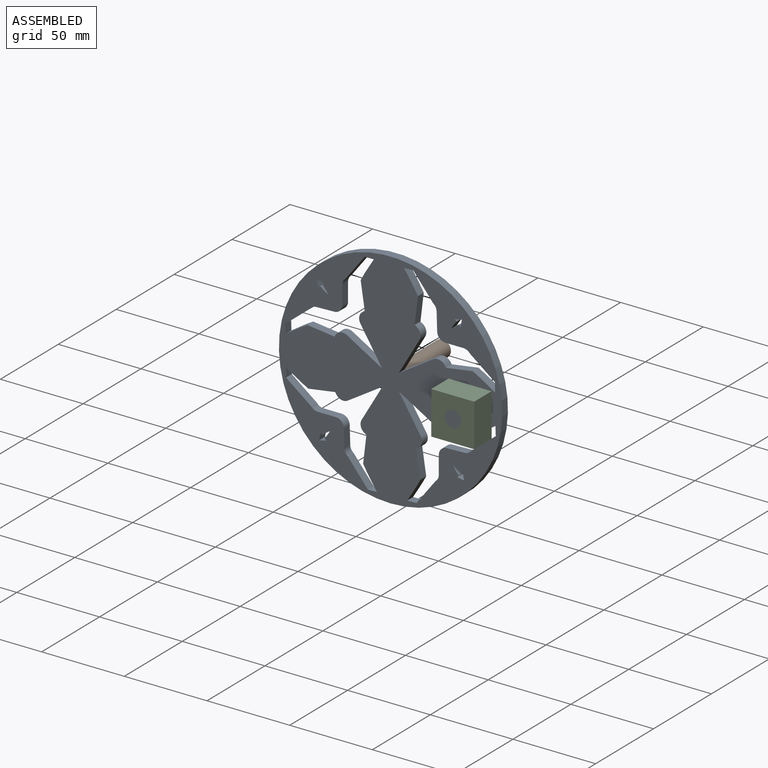
[diagram: assembled view]
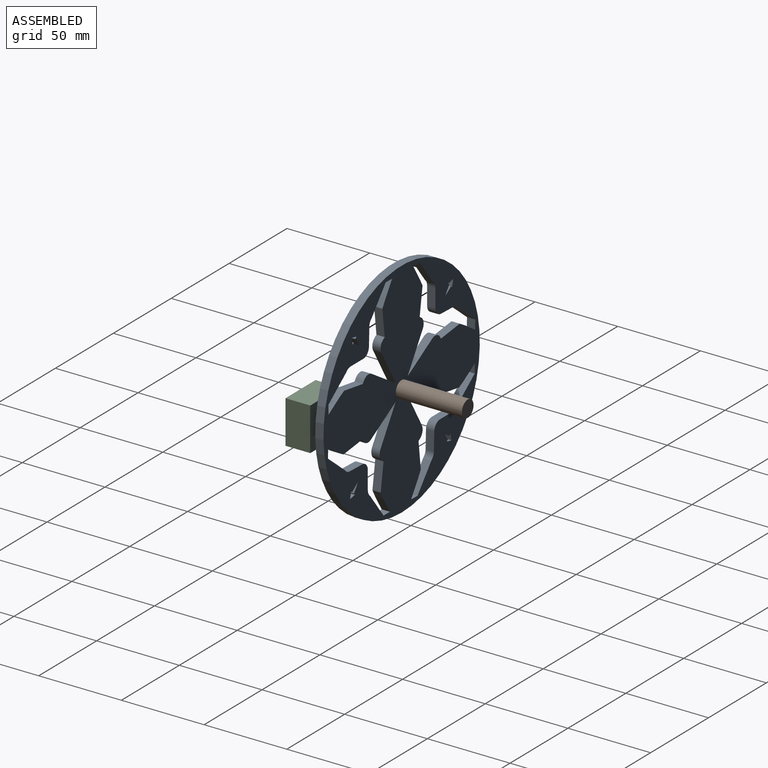
[diagram: assembled view, second angle]
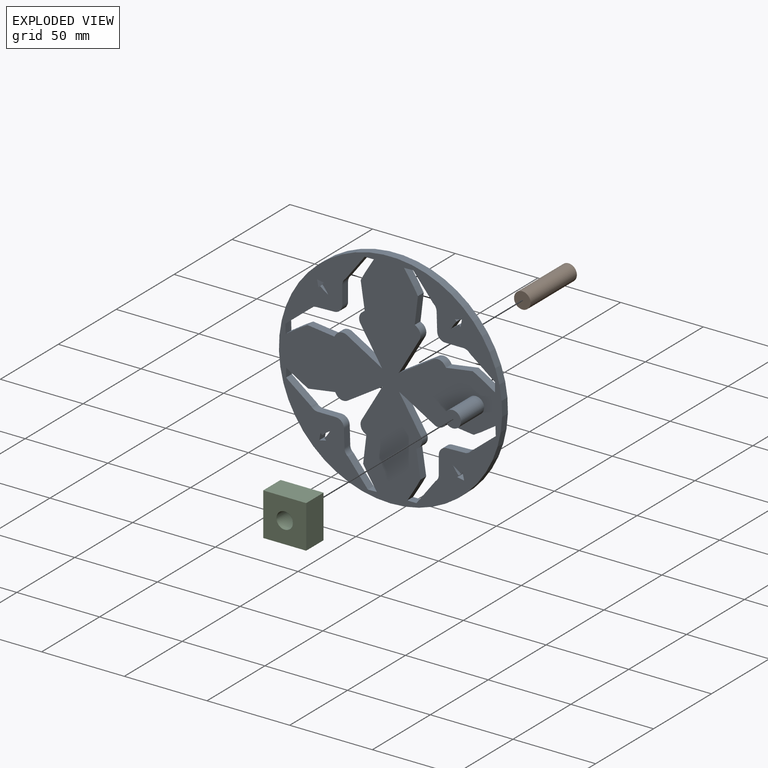
[diagram: exploded view]
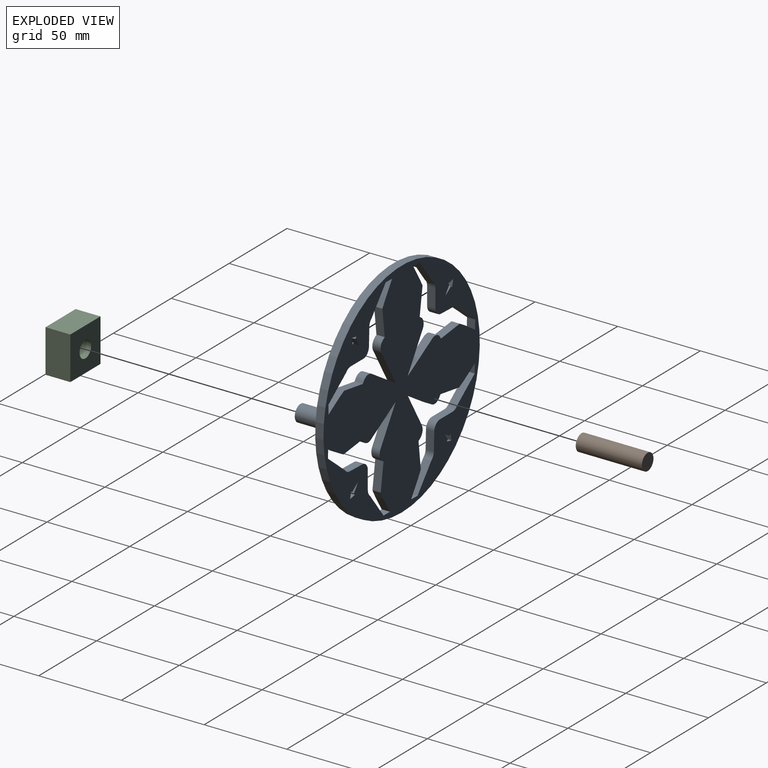
[diagram: exploded view, second angle]
ASSEMBLY  parts=3 mates=2
PART A: 125 faces, bbox 135x25x135 mm
  f0: plane 135x135mm, normal (0,-1,0), area 10554.5mm2, adj f2,f3,f5,f6,f7,f8,f9,f10
  f1: plane 135x135mm, normal (0,1,0), area 10633.1mm2, adj f2,f5,f6,f7,f8,f9,f10,f11
  f2: cylinder r=67.5mm len=135mm, axis (0,1,0), area 2120.6mm2, adj f0,f1
  f3: cylinder r=5mm len=20mm, axis (0,1,0), area 628.3mm2, adj f0,f4
  f4: plane 10x10mm, normal (0,-1,0), area 78.5mm2, adj f3
  f5: plane 20.94x13.12mm, normal (0.53,0,-0.85), area 123.6mm2, adj f0,f1,f6,f65
  f6: plane 21.32x12.49mm, normal (-0.86,0,0.51), area 123.6mm2, adj f0,f1,f5,f66
  f7: plane 20.94x13.12mm, normal (-0.85,0,-0.53), area 123.6mm2, adj f0,f1,f8,f45
  f8: plane 21.32x12.49mm, normal (0.51,0,0.86), area 123.6mm2, adj f0,f1,f7,f46
  f9: plane 5.51x5mm, normal (-1,0,0), area 27.5mm2, adj f0,f1,f10,f30
  f10: plane 15.2x11.63mm, normal (-0.61,0,-0.79), area 95.7mm2, adj f0,f1,f9,f11
  f11: cylinder r=5mm len=5mm, axis (0,-1,0), area 22.8mm2, adj f0,f1,f10,f12
  f12: plane 10.87x5mm, normal (0,0,-1), area 54.4mm2, adj f0,f1,f11,f13
  f13: cylinder r=5mm len=5mm, axis (0,-1,0), area 19.1mm2, adj f0,f1,f12,f14
  f14: cylinder r=5mm len=5mm, axis (0,-1,0), area 19.1mm2, adj f0,f1,f13,f15
  f15: plane 10.87x5mm, normal (-1,0,-0.03), area 54.4mm2, adj f0,f1,f14,f16
  f16: cylinder r=5mm len=5mm, axis (0,-1,0), area 22.8mm2, adj f0,f1,f15,f17
  f17: plane 14.85x12.08mm, normal (-0.78,0,-0.63), area 95.7mm2, adj f0,f1,f16,f18
  f18: plane 5.5x5mm, normal (0.03,0,-1), area 27.5mm2, adj f0,f1,f17,f19
  f19: plane 8.8x5.77mm, normal (0.84,0,0.55), area 52.6mm2, adj f0,f1,f18,f20
  f20: plane 5x4.41mm, normal (0.86,0,0.51), area 25.6mm2, adj f0,f1,f19,f21
  f21: plane 16.25x5mm, normal (0.99,0,-0.12), area 81.8mm2, adj f0,f1,f20,f22
  f22: plane 5x1.25mm, normal (0.54,0,0.84), area 7.4mm2, adj f0,f1,f21,f23
  f23: cylinder r=5mm len=6.73mm, axis (0,-1,0), area 38.2mm2, adj f0,f1,f22,f24
  f24: plane 21.32x12.49mm, normal (0.86,0,-0.51), area 123.6mm2, adj f0,f1,f23,f25
  f25: plane 20.94x13.12mm, normal (-0.53,0,0.85), area 123.6mm2, adj f0,f1,f24,f26
  f26: cylinder r=5mm len=6.77mm, axis (0,-1,0), area 38.2mm2, adj f0,f1,f25,f27
  f27: plane 5x1.23mm, normal (0.82,0,0.57), area 7.4mm2, adj f0,f1,f26,f28
  f28: plane 16.18x5mm, normal (-0.15,0,0.99), area 81.8mm2, adj f0,f1,f27,f29
  f29: plane 5x4.48mm, normal (0.48,0,0.88), area 25.6mm2, adj f0,f1,f28,f30
  f30: plane 8.97x5.51mm, normal (0.52,0,0.85), area 52.6mm2, adj f0,f1,f9,f29
  f31: plane 20.94x13.12mm, normal (0.85,0,0.53), area 123.6mm2, adj f0,f1,f32,f111
  f32: plane 21.32x12.49mm, normal (-0.51,0,-0.86), area 123.6mm2, adj f0,f1,f31,f112
  f33: plane 5x4.2mm, normal (-0.98,0,-0.22), area 21.5mm2, adj f0,f1,f34,f38
  f34: plane 5x1mm, normal (0.72,0,-0.7), area 7mm2, adj f0,f1,f33,f35
  f35: plane 5x1.95mm, normal (-0.61,0,-0.79), area 12.3mm2, adj f0,f1,f34,f36
  f36: plane 5x2.95mm, normal (-0.54,0,-0.84), area 17.5mm2, adj f0,f1,f35,f37
  f37: plane 5x2.89mm, normal (0.82,0,0.57), area 17.5mm2, adj f0,f1,f36,f39
  f38: plane 5x4.23mm, normal (0.19,0,0.98), area 21.5mm2, adj f0,f1,f33,f40
  f39: plane 5x1.91mm, normal (0.77,0,0.63), area 12.3mm2, adj f0,f1,f37,f40
  f40: plane 5x1mm, normal (0.72,0,-0.7), area 7mm2, adj f0,f1,f38,f39
  f41: plane 8.97x5.51mm, normal (-0.85,0,0.52), area 52.6mm2, adj f0,f1,f42,f60
  f42: plane 5x4.48mm, normal (-0.88,0,0.48), area 25.6mm2, adj f0,f1,f41,f43
  f43: plane 16.18x5mm, normal (-0.99,0,-0.15), area 81.8mm2, adj f0,f1,f42,f44
  f44: plane 5x1.23mm, normal (-0.57,0,0.82), area 7.4mm2, adj f0,f1,f43,f45
  f45: cylinder r=5mm len=6.77mm, axis (0,-1,0), area 38.2mm2, adj f0,f1,f7,f44
  f46: cylinder r=5mm len=6.73mm, axis (0,-1,0), area 38.2mm2, adj f0,f1,f8,f47
  f47: plane 5x1.25mm, normal (-0.84,0,0.54), area 7.4mm2, adj f0,f1,f46,f48
  f48: plane 16.25x5mm, normal (0.12,0,0.99), area 81.8mm2, adj f0,f1,f47,f49
  f49: plane 5x4.41mm, normal (-0.51,0,0.86), area 25.6mm2, adj f0,f1,f48,f50
  f50: plane 8.8x5.77mm, normal (-0.55,0,0.84), area 52.6mm2, adj f0,f1,f49,f51
  f51: plane 5.5x5mm, normal (1,0,0.03), area 27.5mm2, adj f0,f1,f50,f52
  f52: plane 14.85x12.08mm, normal (0.63,0,-0.78), area 95.7mm2, adj f0,f1,f51,f53
  f53: cylinder r=5mm len=5mm, axis (0,-1,0), area 22.8mm2, adj f0,f1,f52,f54
  f54: plane 10.87x5mm, normal (0.03,0,-1), area 54.4mm2, adj f0,f1,f53,f55
  f55: cylinder r=5mm len=5mm, axis (0,-1,0), area 19.1mm2, adj f0,f1,f54,f56
  f56: cylinder r=5mm len=5mm, axis (0,-1,0), area 19.1mm2, adj f0,f1,f55,f57
  f57: plane 10.87x5mm, normal (1,0,0), area 54.4mm2, adj f0,f1,f56,f58
  f58: cylinder r=5mm len=5mm, axis (0,-1,0), area 22.8mm2, adj f0,f1,f57,f59
  f59: plane 15.2x11.63mm, normal (0.79,0,-0.61), area 95.7mm2, adj f0,f1,f58,f60
  f60: plane 5.51x5mm, normal (0,0,-1), area 27.5mm2, adj f0,f1,f41,f59
  f61: plane 8.97x5.51mm, normal (-0.52,0,-0.85), area 52.6mm2, adj f0,f1,f62,f80
  f62: plane 5x4.48mm, normal (-0.48,0,-0.88), area 25.6mm2, adj f0,f1,f61,f63
  f63: plane 16.18x5mm, normal (0.15,0,-0.99), area 81.8mm2, adj f0,f1,f62,f64
  f64: plane 5x1.23mm, normal (-0.82,0,-0.57), area 7.4mm2, adj f0,f1,f63,f65
  f65: cylinder r=5mm len=6.77mm, axis (0,-1,0), area 38.2mm2, adj f0,f1,f5,f64
  f66: cylinder r=5mm len=6.73mm, axis (0,-1,0), area 38.2mm2, adj f0,f1,f6,f67
  f67: plane 5x1.25mm, normal (-0.54,0,-0.84), area 7.4mm2, adj f0,f1,f66,f68
  f68: plane 16.25x5mm, normal (-0.99,0,0.12), area 81.8mm2, adj f0,f1,f67,f69
  f69: plane 5x4.41mm, normal (-0.86,0,-0.51), area 25.6mm2, adj f0,f1,f68,f70
  f70: plane 8.8x5.77mm, normal (-0.84,0,-0.55), area 52.6mm2, adj f0,f1,f69,f71
  f71: plane 5.5x5mm, normal (-0.03,0,1), area 27.5mm2, adj f0,f1,f70,f72
  f72: plane 14.85x12.08mm, normal (0.78,0,0.63), area 95.7mm2, adj f0,f1,f71,f73
  f73: cylinder r=5mm len=5mm, axis (0,-1,0), area 22.8mm2, adj f0,f1,f72,f74
  f74: plane 10.87x5mm, normal (1,0,0.03), area 54.4mm2, adj f0,f1,f73,f75
  f75: cylinder r=5mm len=5mm, axis (0,-1,0), area 19.1mm2, adj f0,f1,f74,f76
  f76: cylinder r=5mm len=5mm, axis (0,-1,0), area 19.1mm2, adj f0,f1,f75,f77
  f77: plane 10.87x5mm, normal (0,0,1), area 54.4mm2, adj f0,f1,f76,f78
  f78: cylinder r=5mm len=5mm, axis (0,-1,0), area 22.8mm2, adj f0,f1,f77,f79
  f79: plane 15.2x11.63mm, normal (0.61,0,0.79), area 95.7mm2, adj f0,f1,f78,f80
  f80: plane 5.51x5mm, normal (1,0,0), area 27.5mm2, adj f0,f1,f61,f79
  f81: plane 5x4.23mm, normal (-0.98,0,0.19), area 21.5mm2, adj f0,f1,f82,f86
  f82: plane 5x4.2mm, normal (0.22,0,-0.98), area 21.5mm2, adj f0,f1,f81,f83
  f83: plane 5x1mm, normal (0.7,0,0.72), area 7mm2, adj f0,f1,f82,f84
  f84: plane 5x1.95mm, normal (0.79,0,-0.61), area 12.3mm2, adj f0,f1,f83,f85
  f85: plane 5x2.95mm, normal (0.84,0,-0.54), area 17.5mm2, adj f0,f1,f84,f87
  f86: plane 5x1mm, normal (0.7,0,0.72), area 7mm2, adj f0,f1,f81,f88
  f87: plane 5x2.89mm, normal (-0.57,0,0.82), area 17.5mm2, adj f0,f1,f85,f88
  f88: plane 5x1.91mm, normal (-0.63,0,0.77), area 12.3mm2, adj f0,f1,f86,f87
  f89: plane 5x4.23mm, normal (0.98,0,-0.19), area 21.5mm2, adj f0,f1,f90,f94
  f90: plane 5x4.2mm, normal (-0.22,0,0.98), area 21.5mm2, adj f0,f1,f89,f91
  f91: plane 5x1mm, normal (-0.7,0,-0.72), area 7mm2, adj f0,f1,f90,f92
  f92: plane 5x1.95mm, normal (-0.79,0,0.61), area 12.3mm2, adj f0,f1,f91,f93
  f93: plane 5x2.95mm, normal (-0.84,0,0.54), area 17.5mm2, adj f0,f1,f92,f95
  f94: plane 5x1mm, normal (-0.7,0,-0.72), area 7mm2, adj f0,f1,f89,f96
  f95: plane 5x2.89mm, normal (0.57,0,-0.82), area 17.5mm2, adj f0,f1,f93,f96
  f96: plane 5x1.91mm, normal (0.63,0,-0.77), area 12.3mm2, adj f0,f1,f94,f95
  f97: plane 5x4.23mm, normal (-0.19,0,-0.98), area 21.5mm2, adj f0,f1,f98,f102
  f98: plane 5x4.2mm, normal (0.98,0,0.22), area 21.5mm2, adj f0,f1,f97,f99
  f99: plane 5x1mm, normal (-0.72,0,0.7), area 7mm2, adj f0,f1,f98,f100
  f100: plane 5x1.95mm, normal (0.61,0,0.79), area 12.3mm2, adj f0,f1,f99,f101
  f101: plane 5x2.95mm, normal (0.54,0,0.84), area 17.5mm2, adj f0,f1,f100,f103
  f102: plane 5x1mm, normal (-0.72,0,0.7), area 7mm2, adj f0,f1,f97,f104
  f103: plane 5x2.89mm, normal (-0.82,0,-0.57), area 17.5mm2, adj f0,f1,f101,f104
  f104: plane 5x1.91mm, normal (-0.77,0,-0.63), area 12.3mm2, adj f0,f1,f102,f103
  f105: plane 5.51x5mm, normal (0,0,1), area 27.5mm2, adj f0,f1,f106,f107
  f106: plane 8.97x5.51mm, normal (0.85,0,-0.52), area 52.6mm2, adj f0,f1,f105,f108
  f107: plane 15.2x11.63mm, normal (-0.79,0,0.61), area 95.7mm2, adj f0,f1,f105,f124
  f108: plane 5x4.48mm, normal (0.88,0,-0.48), area 25.6mm2, adj f0,f1,f106,f109
  f109: plane 16.18x5mm, normal (0.99,0,0.15), area 81.8mm2, adj f0,f1,f108,f110
  f110: plane 5x1.23mm, normal (0.57,0,-0.82), area 7.4mm2, adj f0,f1,f109,f111
  f111: cylinder r=5mm len=6.77mm, axis (0,-1,0), area 38.2mm2, adj f0,f1,f31,f110
  f112: cylinder r=5mm len=6.73mm, axis (0,-1,0), area 38.2mm2, adj f0,f1,f32,f113
  f113: plane 5x1.25mm, normal (0.84,0,-0.54), area 7.4mm2, adj f0,f1,f112,f114
  f114: plane 16.25x5mm, normal (-0.12,0,-0.99), area 81.8mm2, adj f0,f1,f113,f115
  f115: plane 5x4.41mm, normal (0.51,0,-0.86), area 25.6mm2, adj f0,f1,f114,f116
  f116: plane 8.8x5.77mm, normal (0.55,0,-0.84), area 52.6mm2, adj f0,f1,f115,f117
  f117: plane 5.5x5mm, normal (-1,0,-0.03), area 27.5mm2, adj f0,f1,f116,f118
  f118: plane 14.85x12.08mm, normal (-0.63,0,0.78), area 95.7mm2, adj f0,f1,f117,f119
  f119: cylinder r=5mm len=5mm, axis (0,-1,0), area 22.8mm2, adj f0,f1,f118,f120
  f120: plane 10.87x5mm, normal (-0.03,0,1), area 54.4mm2, adj f0,f1,f119,f121
  f121: cylinder r=5mm len=5mm, axis (0,-1,0), area 19.1mm2, adj f0,f1,f120,f122
  f122: cylinder r=5mm len=5mm, axis (0,-1,0), area 19.1mm2, adj f0,f1,f121,f123
  f123: plane 10.87x5mm, normal (-1,0,0), area 54.4mm2, adj f0,f1,f122,f124
  f124: cylinder r=5mm len=5mm, axis (0,-1,0), area 22.8mm2, adj f0,f1,f107,f123
PART B: 3 faces, bbox 10x40x10 mm
  f0: cylinder r=5mm len=40mm, axis (0,1,0), area 1256.6mm2, adj f1,f2
  f1: plane 10x10mm, normal (0,-1,0), area 78.5mm2, adj f0
  f2: plane 10x10mm, normal (0,1,0), area 78.5mm2, adj f0
PART C: 7 faces, bbox 26x15x26 mm
  f0: plane 26x15mm, normal (0,0,-1), area 390mm2, adj f1,f3,f4,f5
  f1: plane 26x15mm, normal (1,0,0), area 390mm2, adj f0,f2,f4,f5
  f2: plane 26x15mm, normal (0,0,1), area 390mm2, adj f1,f3,f4,f5
  f3: plane 26x15mm, normal (-1,0,0), area 390mm2, adj f0,f2,f4,f5
  f4: plane 26x26mm, normal (0,-1,0), area 597.5mm2, adj f0,f1,f2,f3,f6
  f5: plane 26x26mm, normal (0,1,0), area 597.5mm2, adj f0,f1,f2,f3,f6
  f6: cylinder r=5mm len=15mm, axis (0,1,0), area 471.2mm2, adj f4,f5
PLACE A t=(-4.46,41.3,4.52)mm
PLACE B t=(-4.46,81.3,4.52)mm
PLACE C t=(47.14,31.3,4.52)mm
MATE revolute A.f2 <-> B.f0  axis (0,1,0) through (-4.46,41.3,4.52)mm
MATE revolute C.f6 <-> A.f3  axis (0,-1,0) through (47.14,16.3,4.52)mm
